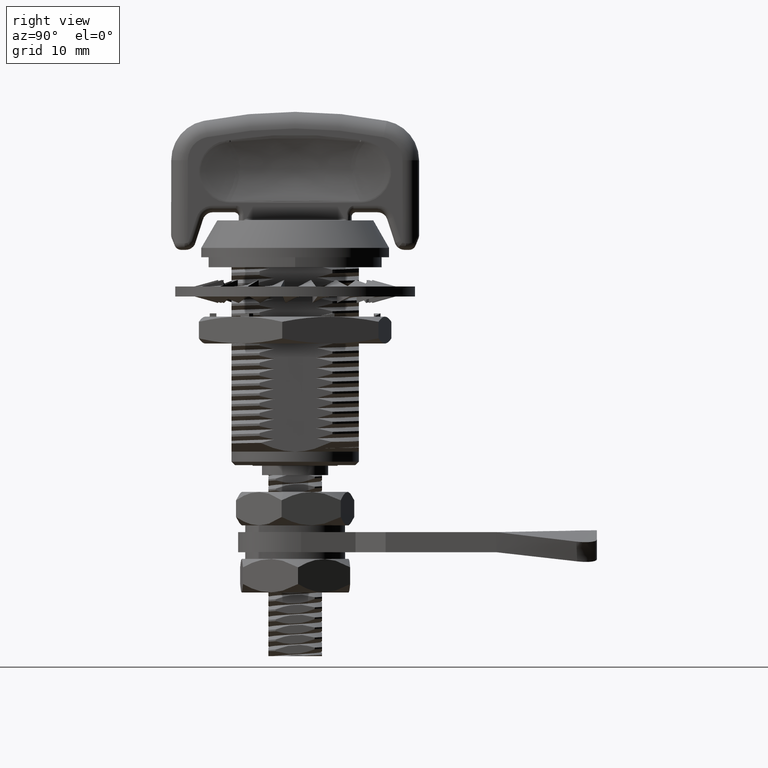
[diagram: clean part render]
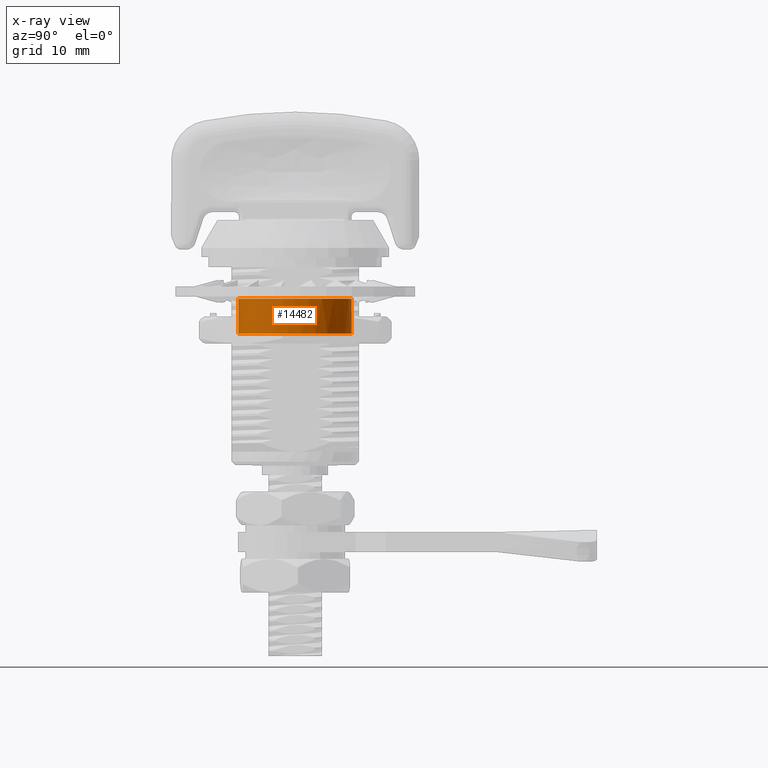
[diagram: x-ray — body ghosted, one internal face saturated and labeled with its STEP entity id]
A machine part, right view, then the same camera in x-ray: the body is ghosted and one INTERNAL B-rep face — a face not visible from any outside direction — is saturated and labeled: STEP entity #14482.
In plain terms, the highlighted cylindrical surface (bore or boss wall) has radius 8.45 mm, axis along (0, 0, -1).
Its self-contained STEP definition (entity closure, byte-faithful):
#1861=CYLINDRICAL_SURFACE('',#15253,8.45);
#3442=FACE_BOUND('',#4665,.T.);
#3785=FACE_OUTER_BOUND('',#4664,.T.);
#4664=EDGE_LOOP('',(#11041));
#4665=EDGE_LOOP('',(#11042));
#5344=CIRCLE('',#15254,8.45);
#5345=CIRCLE('',#15255,8.45);
#6136=VERTEX_POINT('',#62503);
#6137=VERTEX_POINT('',#62505);
#7911=EDGE_CURVE('',#6136,#6136,#5344,.T.);
#7912=EDGE_CURVE('',#6137,#6137,#5345,.T.);
#11041=ORIENTED_EDGE('',*,*,#7911,.F.);
#11042=ORIENTED_EDGE('',*,*,#7912,.F.);
#14482=ADVANCED_FACE('',(#3785,#3442),#1861,.T.);
#15253=AXIS2_PLACEMENT_3D('',#62502,#16558,#16559);
#15254=AXIS2_PLACEMENT_3D('',#62504,#16560,#16561);
#15255=AXIS2_PLACEMENT_3D('',#62506,#16562,#16563);
#16558=DIRECTION('center_axis',(0.,-1.,0.));
#16559=DIRECTION('ref_axis',(-1.,0.,0.));
#16560=DIRECTION('center_axis',(0.,1.,0.));
#16561=DIRECTION('ref_axis',(-0.295857988165713,0.,-0.955231935625342));
#16562=DIRECTION('center_axis',(0.,-1.,0.));
#16563=DIRECTION('ref_axis',(1.,0.,1.330192508293E-10));
#62502=CARTESIAN_POINT('Origin',(0.,28.915,0.));
#62503=CARTESIAN_POINT('',(8.45,25.8,1.03482654527951E-15));
#62504=CARTESIAN_POINT('Origin',(0.,25.8,0.));
#62505=CARTESIAN_POINT('',(1.03482654527951E-15,20.6,8.45));
#62506=CARTESIAN_POINT('Origin',(0.,20.6,0.));